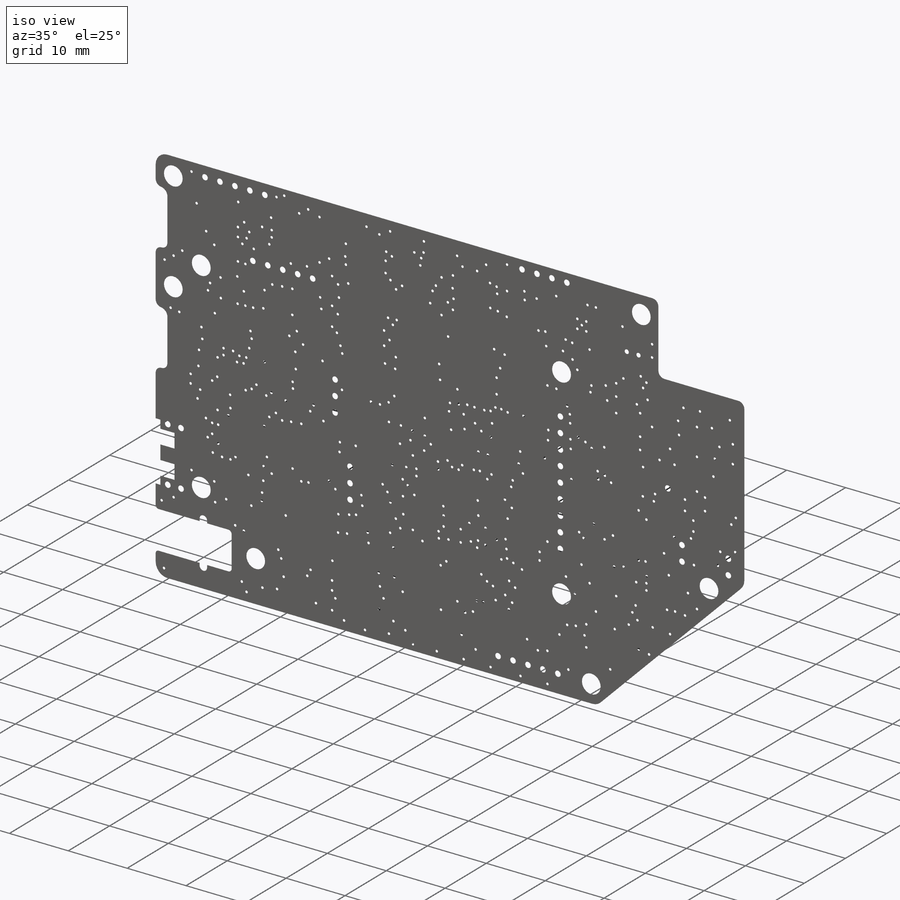
[diagram: iso view]
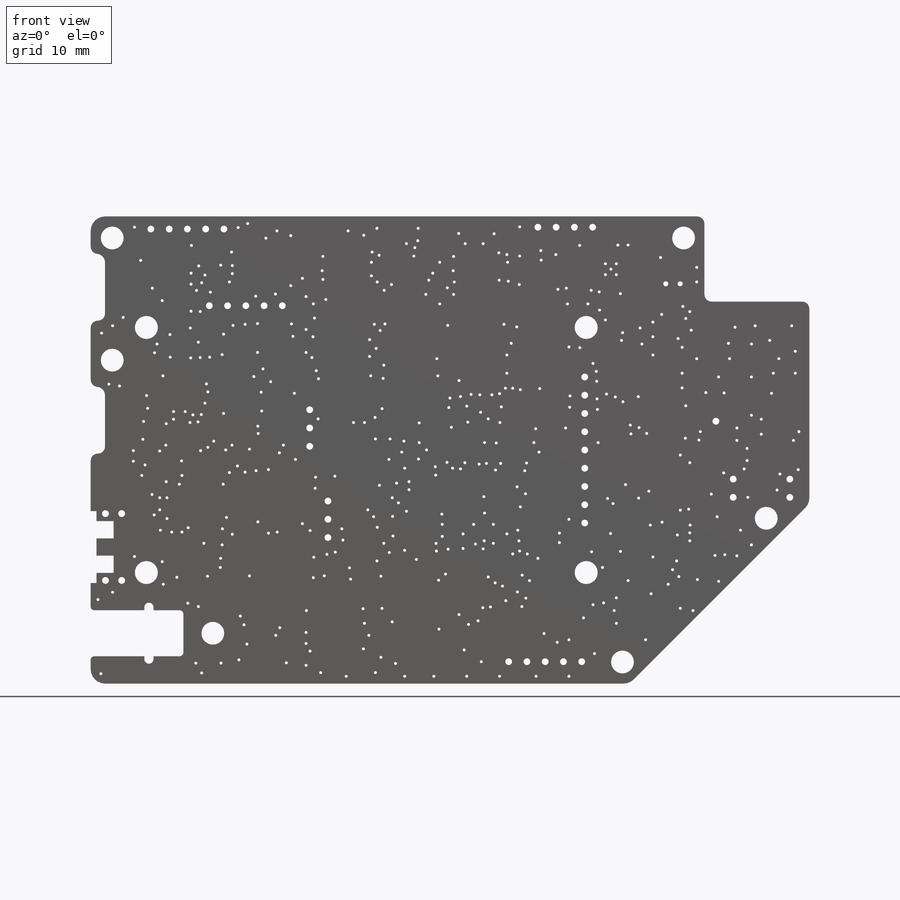
[diagram: front view]
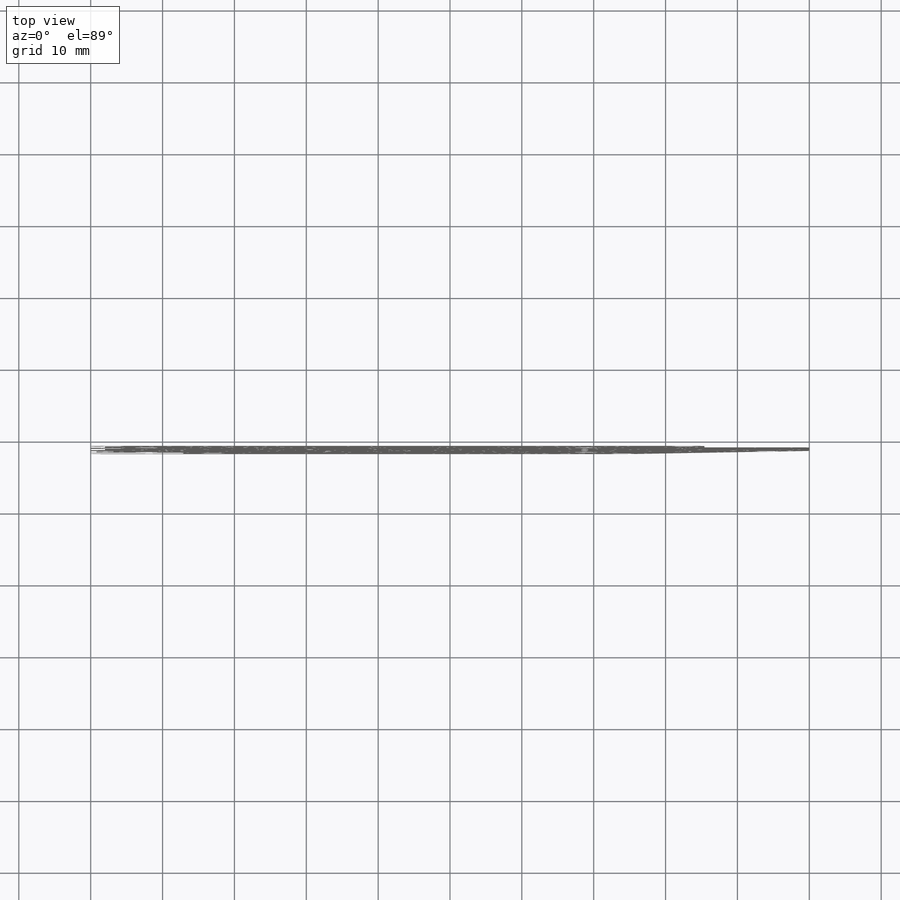
[diagram: top view]
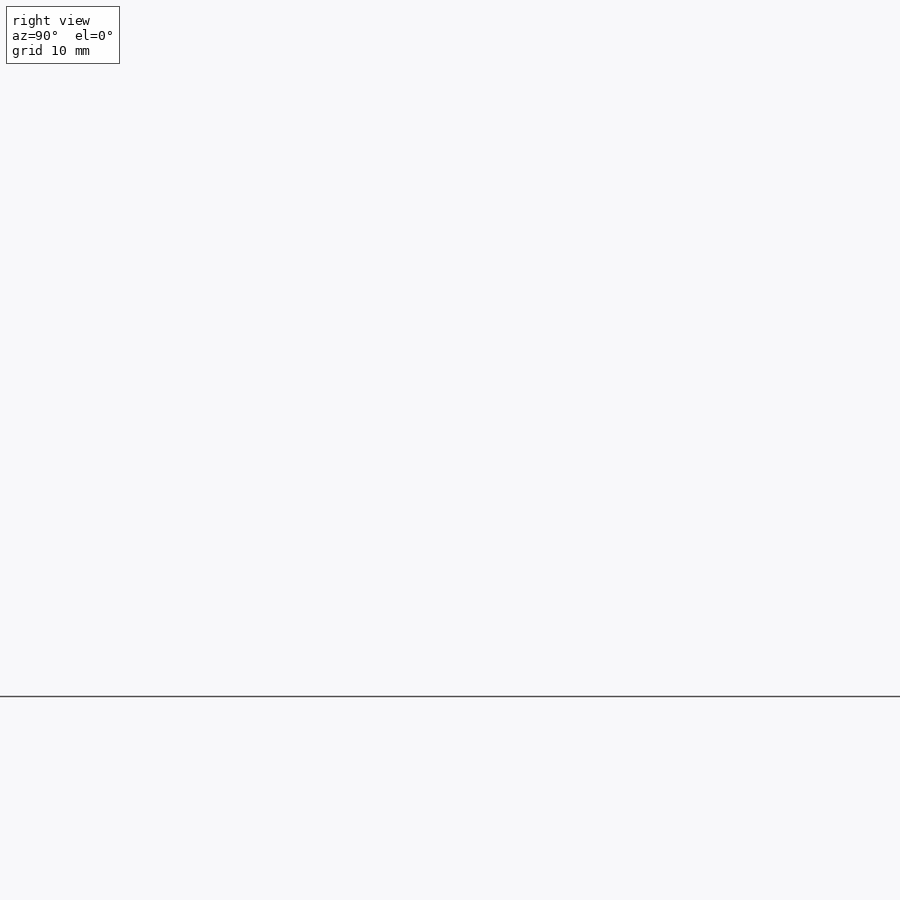
[diagram: right view]
SOLIDWORKS PART (.sldprt)
format: sldprt  version: not decoded by parser v0  size: 2,932,736 bytes
history: native  units: mm
features: sketch x338, extrude x336, cut_extrude x2, material x1, plane x1, fillet x1 (+12 scaffold rows collapsed; 1 parser-record rows omitted)
feature tree (692):
  scaffold x12  (default folders/planes/origin — collapsed)
  material  "Material <not specified>"
  sketch  "Sketch1"
  extrude  "BOARD"  Depth=1.68mm
  sketch  "Sketch2"
  cut_extrude  "PLATED HOLES"  [1 undecoded]
  plane  "Plane1"
  parser-record x1  (decoder bookkeeping rows leaked as tree rows — omitted from the tree; the rows remain in map.json)
  sketch  "Sketch6"
  extrude  "C0603-2"  Depth=0.65mm
  sketch  "Sketch7"
  extrude  "C0603-3"  Depth=0.65mm
  sketch  "Sketch8"
  extrude  "C0603-4"  Depth=0.65mm
  sketch  "Sketch9"
  extrude  "C0603-5"  Depth=0.65mm
  sketch  "Sketch10"
  extrude  "C0603-6"  Depth=0.65mm
  sketch  "Sketch11"
  extrude  "C0603-7"  Depth=0.65mm
  sketch  "Sketch12"
  extrude  "C0603-8"  Depth=0.65mm
  sketch  "Sketch13"
  extrude  "C0603-9"  Depth=0.65mm
  sketch  "Sketch14"
  extrude  "C0603-10"  Depth=0.65mm
  sketch  "Sketch15"
  extrude  "C0603-11"  Depth=0.65mm
  sketch  "Sketch16"
  extrude  "C0603-12"  Depth=0.65mm
  sketch  "Sketch17"
  extrude  "C0603-13"  Depth=0.65mm
  sketch  "Sketch18"
  extrude  "GENERIC_CAP_0805-1"  Depth=0.78mm
  sketch  "Sketch19"
  extrude  "GENERIC_CAP_0805-2"  Depth=0.78mm
  sketch  "Sketch21"
  extrude  "GENERIC_CAP_0805-4"  Depth=0.78mm
  sketch  "Sketch22"
  extrude  "C0603-14"  Depth=0.65mm
  sketch  "Sketch24"
  extrude  "C0603-16"  Depth=0.65mm
  sketch  "Sketch27"
  extrude  "C0603-19"  Depth=0.65mm
  sketch  "Sketch28"
  extrude  "C0603-20"  Depth=0.65mm
  sketch  "Sketch29"
  extrude  "C0603-21"  Depth=0.65mm
  sketch  "Sketch30"
  extrude  "C0603-22"  Depth=0.65mm
  sketch  "Sketch31"
  extrude  "C0603-23"  Depth=0.65mm
  sketch  "Sketch32"
  extrude  "C0603-24"  Depth=0.65mm
  sketch  "Sketch26"
  extrude  "C0603-18"  Depth=0.65mm
  sketch  "Sketch33"
  extrude  "C0603-25"  Depth=0.65mm
  sketch  "Sketch34"
  extrude  "C0603-26"  Depth=0.65mm
  sketch  "Sketch35"
  extrude  "C0603-27"  Depth=0.65mm
  sketch  "Sketch36"
  extrude  "C0603-28"  Depth=0.65mm
  sketch  "Sketch37"
  extrude  "C0603-29"  Depth=0.65mm
  sketch  "Sketch25"
  extrude  "C0603-17"  Depth=0.65mm
  sketch  "Sketch20"
  extrude  "GENERIC_CAP_0805-3"  Depth=0.78mm
  sketch  "Sketch23"
  extrude  "C0603-15"  Depth=0.65mm
  sketch  "Sketch39"
  extrude  "C0603-31"  Depth=0.65mm
  sketch  "Sketch38"
  extrude  "C0603-30"  Depth=0.65mm
  sketch  "Sketch5"
  extrude  "C0603-1"  Depth=0.65mm
  sketch  "Sketch40"
  extrude  "C0603-32"  Depth=0.65mm
  sketch  "Sketch41"
  extrude  "C0603-33"  Depth=0.65mm
  sketch  "Sketch42"
  extrude  "C0603-34"  Depth=0.65mm
  sketch  "Sketch43"
  extrude  "C0603-35"  Depth=0.65mm
  sketch  "Sketch44"
  extrude  "C0603-36"  Depth=0.65mm
  sketch  "Sketch45"
  extrude  "C0603-37"  Depth=0.65mm
  sketch  "Sketch46"
  extrude  "C0603-38"  Depth=0.65mm
  sketch  "Sketch47"
  extrude  "C0603-39"  Depth=0.65mm
  sketch  "Sketch48"
  extrude  "C0603-40"  Depth=0.65mm
  sketch  "Sketch49"
  extrude  "C0603-41"  Depth=0.65mm
  sketch  "Sketch50"
  extrude  "C0603-42"  Depth=0.65mm
  sketch  "Sketch51"
  extrude  "C0603-43"  Depth=0.65mm
  sketch  "Sketch52"
  extrude  "C0603-44"  Depth=0.65mm
  sketch  "Sketch53"
  extrude  "C0603-45"  Depth=0.65mm
  sketch  "Sketch54"
  extrude  "L0805-1"  Depth=1.25mm
  sketch  "Sketch55"
  extrude  "L0805-2"  Depth=1.25mm
  sketch  "Sketch56"
  extrude  "L0805-3"  Depth=1.25mm
  sketch  "Sketch57"
  extrude  "L0805-4"  Depth=1.25mm
  sketch  "Sketch58"
  extrude  "L0805-5"  Depth=1.25mm
  sketch  "Sketch59"
  extrude  "L0805-6"  Depth=1.25mm
  sketch  "Sketch60"
  extrude  "L0805-7"  Depth=1.25mm
  sketch  "Sketch61"
  extrude  "L0805-8"  Depth=1.25mm
  sketch  "Sketch62"
  extrude  "LED0603-1"  Depth=0.65mm
  sketch  "Sketch63"
  extrude  "R0603-1"  Depth=0.4mm
  sketch  "Sketch64"
  extrude  "R0603-2"  Depth=0.4mm
  sketch  "Sketch65"
  extrude  "R0603-3"  Depth=0.4mm
  sketch  "Sketch66"
  extrude  "R0603-4"  Depth=0.4mm
  sketch  "Sketch67"
  extrude  "R0603-5"  Depth=0.4mm
  sketch  "Sketch68"
  extrude  "R0603-6"  Depth=0.4mm
  sketch  "Sketch69"
  extrude  "R0603-7"  Depth=0.4mm
  sketch  "Sketch70"
  extrude  "R0603-8"  Depth=0.4mm
  sketch  "Sketch71"
  extrude  "R0603-9"  Depth=0.4mm
  sketch  "Sketch72"
  extrude  "R0603-10"  Depth=0.4mm
  sketch  "Sketch73"
  extrude  "R0603-11"  Depth=0.4mm
  sketch  "Sketch74"
  extrude  "R0603-12"  Depth=0.4mm
  sketch  "Sketch75"
  extrude  "R0603-13"  Depth=0.4mm
  sketch  "Sketch76"
  extrude  "R0603-14"  Depth=0.4mm
  sketch  "Sketch77"
  extrude  "75HMHZ_OSC-1"  Depth=0.65mm
  sketch  "Sketch78"
  extrude  "AD9834-1"  Depth=1.2mm
  sketch  "Sketch79"
  extrude  "AD9834-2"  Depth=1.2mm
  sketch  "Sketch80"
  extrude  "DS90LV028-1"  Depth=1.1999mm
  sketch  "Sketch81"
  extrude  "C0805-1"  Depth=1.35mm
  sketch  "Sketch82"
  extrude  "C0603-46"  Depth=0.65mm
  sketch  "Sketch83"
  extrude  "R0603-15"  Depth=0.4mm
  sketch  "Sketch85"
  extrude  "T4-1-KK81-1"  Depth=0.65mm
  sketch  "Sketch86"
  extrude  "C0603-47"  Depth=0.65mm
  sketch  "Sketch87"
  extrude  "C0603-48"  Depth=0.65mm
  sketch  "Sketch91"
  extrude  "C0603-49"  Depth=0.65mm
  sketch  "Sketch92"
  extrude  "C0603-50"  Depth=0.65mm
  sketch  "Sketch93"
  extrude  "R0603-16"  Depth=0.4mm
  sketch  "Sketch94"
  extrude  "C0603-51"  Depth=0.65mm
  sketch  "Sketch95"
  extrude  "C0603-52"  Depth=0.65mm
  sketch  "Sketch96"
  extrude  "C0603-53"  Depth=0.65mm
  sketch  "Sketch97"
  extrude  "C0603-54"  Depth=0.65mm
  sketch  "Sketch98"
  extrude  "C0603-55"  Depth=0.65mm
  sketch  "Sketch99"
  extrude  "C0603-56"  Depth=0.65mm
  sketch  "Sketch100"
  extrude  "C0603-57"  Depth=0.65mm
  sketch  "Sketch101"
  extrude  "C0603-58"  Depth=0.65mm
  sketch  "Sketch102"
  extrude  "C0603-59"  Depth=0.65mm
  sketch  "Sketch103"
  extrude  "C0603-60"  Depth=0.65mm
  sketch  "Sketch104"
  extrude  "C0603-61"  Depth=0.65mm
  sketch  "Sketch105"
  extrude  "C0603-62"  Depth=0.65mm
  sketch  "Sketch106"
  extrude  "C0603-63"  Depth=0.65mm
  sketch  "Sketch107"
  extrude  "C0603-64"  Depth=0.65mm
  sketch  "Sketch108"
  extrude  "C0603-65"  Depth=0.65mm
  sketch  "Sketch109"
  extrude  "C0603-66"  Depth=0.65mm
  sketch  "Sketch110"
  extrude  "C0603-67"  Depth=0.65mm
  sketch  "Sketch111"
  extrude  "C0603-68"  Depth=0.65mm
  sketch  "Sketch112"
  extrude  "C0603-69"  Depth=0.65mm
  sketch  "Sketch113"
  extrude  "L0805-9"  Depth=1.25mm
  sketch  "Sketch114"
  extrude  "L0805-10"  Depth=1.25mm
  sketch  "Sketch115"
  extrude  "L0805-11"  Depth=1.25mm
  sketch  "Sketch116"
  extrude  "L0805-12"  Depth=1.25mm
  sketch  "Sketch117"
  extrude  "R0603-17"  Depth=0.4mm
  sketch  "Sketch118"
  extrude  "R0603-18"  Depth=0.4mm
  sketch  "Sketch119"
  extrude  "AD8131-1"  Depth=1.1mm
  sketch  "Sketch120"
  extrude  "AD8131-2"  Depth=1.1mm
  sketch  "Sketch121"
  extrude  "74CBTLV3253-1"  Depth=1.73mm
  sketch  "Sketch122"
  extrude  "74CBTLV3253-2"  Depth=1.73mm
  sketch  "Sketch123"
  extrude  "MCP6N11-1"  Depth=0.65mm
  sketch  "Sketch124"
  extrude  "MCP6N11-2"  Depth=0.65mm
  sketch  "Sketch125"
  extrude  "R0603-19"  Depth=0.4mm
  sketch  "Sketch126"
  extrude  "R0603-20"  Depth=0.4mm
  sketch  "Sketch127"
  extrude  "R0603-21"  Depth=0.4mm
  sketch  "Sketch128"
  extrude  "R0603-22"  Depth=0.4mm
  sketch  "Sketch131"
  extrude  "C0603-70"  Depth=0.65mm
  sketch  "Sketch132"
  extrude  "C0603-71"  Depth=0.65mm
  sketch  "Sketch133"
  extrude  "C0603-72"  Depth=0.65mm
  sketch  "Sketch134"
  extrude  "C0603-73"  Depth=0.65mm
  sketch  "Sketch135"
  extrude  "C0603-74"  Depth=0.65mm
  sketch  "Sketch136"
  extrude  "C0603-75"  Depth=0.65mm
  sketch  "Sketch137"
  extrude  "C0603-76"  Depth=0.65mm
  sketch  "Sketch138"
  extrude  "C0603-77"  Depth=0.65mm
  sketch  "Sketch139"
  extrude  "R0603-23"  Depth=0.4mm
  sketch  "Sketch140"
  extrude  "R0603-24"  Depth=0.4mm
  sketch  "Sketch141"
  extrude  "R0603-25"  Depth=0.4mm
  sketch  "Sketch142"
  extrude  "R0603-26"  Depth=0.4mm
  sketch  "Sketch144"
  extrude  "SOT-23-1"  Depth=1.1mm
  sketch  "Sketch145"
  extrude  "ENCODER_PEC09-2320F-S0015-1"  Depth=0.65mm
  sketch  "Sketch147"
  extrude  "R1206-1"  Depth=0.65mm
  sketch  "Sketch148"
  extrude  "CRYSTAL_24MHZ_P79E-1"  Depth=0.65mm
  sketch  "Sketch149"
  extrude  "C0603-78"  Depth=0.65mm
  sketch  "Sketch150"
  extrude  "C0603-79"  Depth=0.65mm
  sketch  "Sketch151"
  extrude  "2U2H_INDUCTOR_NR6028T2R2N-1"  Depth=0.65mm
  sketch  "Sketch152"
  extrude  "BUCK_REGULATOR_AP3417C-1"  Depth=0.65mm
  sketch  "Sketch153"
  extrude  "DPDT_ANALOG_MAX4525-1"  Depth=0.95mm
  sketch  "Sketch154"
  extrude  "R0603-27"  Depth=0.4mm
  sketch  "Sketch155"
  extrude  "R0603-28"  Depth=0.4mm
  sketch  "Sketch156"
  extrude  "R1206-2"  Depth=0.65mm
  sketch  "Sketch157"
  extrude  "SOT-23-5-1"  Depth=0.65mm
  sketch  "Sketch170"
  extrude  "AD8302-1"  Depth=1.2mm
  sketch  "Sketch171"
  extrude  "MICROPHONE_MEMS_SPU0410HR5H-PB-1"  Depth=0.65mm
  sketch  "Sketch172"
  extrude  "AUDIO_AMP_TPA0253DGQR-1"  Depth=0.65mm
  sketch  "Sketch173"
  extrude  "BAT-MANAGE_MCP73871-1"  Depth=1mm
  sketch  "Sketch174"
  extrude  "CAP_SENSE_AT42QT1010-1"  Depth=1.45mm
  sketch  "Sketch175"
  extrude  "CAP_SENSE_AT42QT1010-2"  Depth=1.45mm
  sketch  "Sketch176"
  extrude  "CRYSTAL_SMT_32_768-1"  Depth=0.65mm
  sketch  "Sketch177"
  extrude  "C0603-80"  Depth=0.65mm
  sketch  "Sketch178"
  extrude  "C0603-81"  Depth=0.65mm
  sketch  "Sketch179"
  extrude  "C0603-82"  Depth=0.65mm
  sketch  "Sketch180"
  extrude  "C0603-83"  Depth=0.65mm
  sketch  "Sketch181"
  extrude  "C0603-84"  Depth=0.65mm
  sketch  "Sketch182"
  extrude  "C0603-85"  Depth=0.65mm
  sketch  "Sketch183"
  extrude  "C0603-86"  Depth=0.65mm
  sketch  "Sketch184"
  extrude  "C0603-87"  Depth=0.65mm
  sketch  "Sketch185"
  extrude  "C0603-88"  Depth=0.65mm
  sketch  "Sketch186"
  extrude  "C0603-89"  Depth=0.65mm
  sketch  "Sketch187"
  extrude  "C0603-90"  Depth=0.65mm
  sketch  "Sketch188"
  extrude  "C0603-91"  Depth=0.65mm
  sketch  "Sketch189"
  extrude  "C0603-92"  Depth=0.65mm
  sketch  "Sketch190"
  extrude  "C0603-93"  Depth=0.65mm
  sketch  "Sketch191"
  extrude  "C0603-94"  Depth=0.65mm
  sketch  "Sketch192"
  extrude  "C0603-95"  Depth=0.65mm
  sketch  "Sketch193"
  extrude  "C0603-96"  Depth=0.65mm
  sketch  "Sketch194"
  extrude  "C0603-97"  Depth=0.65mm
  sketch  "Sketch195"
  extrude  "C0603-98"  Depth=0.65mm
  sketch  "Sketch196"
  extrude  "C0603-99"  Depth=0.65mm
  sketch  "Sketch197"
  extrude  "C0603-100"  Depth=0.65mm
  sketch  "Sketch198"
  extrude  "GENERIC_CAP_0805-5"  Depth=0.78mm
  sketch  "Sketch199"
  extrude  "GENERIC_CAP_0805-6"  Depth=0.78mm
  sketch  "Sketch200"
  extrude  "GENERIC_CAP_0805-7"  Depth=0.78mm
  sketch  "Sketch201"
  extrude  "GENERIC_CAP_0805-8"  Depth=0.78mm
  sketch  "Sketch202"
  extrude  "GENERIC_CAP_0805-9"  Depth=0.78mm
  sketch  "Sketch203"
  extrude  "GENERIC_CAP_0805-10"  Depth=0.78mm
  sketch  "Sketch204"
  extrude  "C0603-101"  Depth=0.65mm
  sketch  "Sketch205"
  extrude  "C0603-102"  Depth=0.65mm
  sketch  "Sketch206"
  extrude  "C1210-1"  Depth=1.7mm
  sketch  "Sketch207"
  extrude  "C1210-2"  Depth=1.7mm
  sketch  "Sketch208"
  extrude  "C0603-103"  Depth=0.65mm
  sketch  "Sketch209"
  extrude  "C0805-2"  Depth=1.35mm
  sketch  "Sketch210"
  extrude  "C0805-3"  Depth=1.35mm
  sketch  "Sketch211"
  extrude  "C0603-104"  Depth=0.65mm
  sketch  "Sketch212"
  extrude  "C0603-105"  Depth=0.65mm
  sketch  "Sketch213"
  extrude  "C0603-106"  Depth=0.65mm
  sketch  "Sketch214"
  extrude  "C0603-107"  Depth=0.65mm
  sketch  "Sketch215"
  extrude  "C0603-108"  Depth=0.65mm
  sketch  "Sketch216"
  extrude  "C0603-109"  Depth=0.65mm
  sketch  "Sketch217"
  extrude  "C0603-110"  Depth=0.65mm
  sketch  "Sketch218"
  extrude  "C0603-111"  Depth=0.65mm
  sketch  "Sketch219"
  extrude  "C0603-112"  Depth=0.65mm
  sketch  "Sketch220"
  extrude  "C0603-113"  Depth=0.65mm
  sketch  "Sketch221"
  extrude  "C0603-114"  Depth=0.65mm
  sketch  "Sketch222"
  extrude  "C0603-115"  Depth=0.65mm
  sketch  "Sketch223"
  extrude  "C0603-116"  Depth=0.65mm
  sketch  "Sketch224"
  extrude  "C0603-117"  Depth=0.65mm
  sketch  "Sketch225"
  extrude  "C0603-118"  Depth=0.65mm
  sketch  "Sketch226"
  extrude  "C0603-119"  Depth=0.65mm
  sketch  "Sketch227"
  extrude  "C0603-120"  Depth=0.65mm
  sketch  "Sketch228"
  extrude  "C0603-121"  Depth=0.65mm
  sketch  "Sketch229"
  extrude  "C0603-122"  Depth=0.65mm
  sketch  "Sketch230"
  extrude  "C0603-123"  Depth=0.65mm
  sketch  "Sketch231"
  extrude  "C0603-124"  Depth=0.65mm
  sketch  "Sketch232"
  extrude  "C0603-125"  Depth=0.65mm
  sketch  "Sketch233"
  extrude  "C0603-126"  Depth=0.65mm
  sketch  "Sketch234"
  extrude  "C0603-127"  Depth=0.65mm
  sketch  "Sketch235"
  extrude  "C0603-128"  Depth=0.65mm
  sketch  "Sketch236"
  extrude  "C0603-129"  Depth=0.65mm
  sketch  "Sketch237"
  extrude  "C0603-130"  Depth=0.65mm
  sketch  "Sketch238"
  extrude  "C0603-131"  Depth=0.65mm
  sketch  "Sketch239"
  extrude  "C0603-132"  Depth=0.65mm
  sketch  "Sketch240"
  extrude  "C0603-133"  Depth=0.65mm
  sketch  "Sketch241"
  extrude  "C0603-134"  Depth=0.65mm
  sketch  "Sketch242"
  extrude  "C0603-135"  Depth=0.65mm
  sketch  "Sketch243"
  extrude  "C0603-136"  Depth=0.65mm
  sketch  "Sketch244"
  extrude  "C0603-137"  Depth=0.65mm
  sketch  "Sketch245"
  extrude  "C0603-138"  Depth=0.65mm
  sketch  "Sketch246"
  extrude  "C0603-139"  Depth=0.65mm
  sketch  "Sketch247"
  extrude  "C0603-140"  Depth=0.65mm
  sketch  "Sketch248"
  extrude  "C0603-141"  Depth=0.65mm
  sketch  "Sketch249"
  extrude  "C0603-142"  Depth=0.65mm
  sketch  "Sketch250"
  extrude  "C0603-143"  Depth=0.65mm
  sketch  "Sketch251"
  extrude  "C0603-144"  Depth=0.65mm
  sketch  "Sketch252"
  extrude  "C0603-145"  Depth=0.65mm
  sketch  "Sketch253"
  extrude  "C0603-146"  Depth=0.65mm
  sketch  "Sketch254"
  extrude  "C0603-147"  Depth=0.65mm
  sketch  "Sketch255"
  extrude  "C0603-148"  Depth=0.65mm
  sketch  "Sketch256"
  extrude  "C0603-149"  Depth=0.65mm
  sketch  "Sketch257"
  extrude  "C0603-150"  Depth=0.65mm
  sketch  "Sketch258"
  extrude  "C0603-151"  Depth=0.65mm
  sketch  "Sketch259"
  extrude  "C0603-152"  Depth=0.65mm
  sketch  "Sketch260"
  extrude  "C0603-153"  Depth=0.65mm
  sketch  "Sketch261"
  extrude  "DIGITAL_POT_MAX5388-1"  Depth=0.95mm
  sketch  "Sketch262"
  extrude  "GP-1513-1"  Depth=0.65mm
  sketch  "Sketch263"
  extrude  "GPS_CERAMIC_ANT_25X25X2-1"  Depth=0.65mm
  sketch  "Sketch264"
  extrude  "JST_2P-2MM-1"  Depth=0.65mm
  sketch  "Sketch265"
  extrude  "MIC_PREAMP_SSM2167-1"  Depth=1.45mm
  sketch  "Sketch266"
  extrude  "SOT-23-2"  Depth=1.1mm
  sketch  "Sketch267"
  extrude  "SOT-23-3"  Depth=1.1mm
  sketch  "Sketch268"
  extrude  "SOT-23-4"  Depth=1.1mm
  sketch  "Sketch269"
  extrude  "OP_AMP_FAN4174-1"  Depth=0.65mm
  sketch  "Sketch270"
  extrude  "OP_AMP_FAN4174-2"  Depth=0.65mm
  sketch  "Sketch271"
  extrude  "OP_AMP_FAN4174-3"  Depth=0.65mm
  sketch  "Sketch272"
  extrude  "OP_AMP_FAN4174-4"  Depth=0.65mm
  sketch  "Sketch273"
  extrude  "OP_AMP_FAN4174-5"  Depth=0.65mm
  sketch  "Sketch274"
  extrude  "RF_DPDT_MASWSS0129TR-1"  Depth=0.9mm
  sketch  "Sketch275"
  extrude  "RF_DPDT_MASWSS0129TR-2"  Depth=0.9mm
  sketch  "Sketch276"
  extrude  "RF_DPDT_MASWSS0129TR-3"  Depth=0.9mm
  sketch  "Sketch277"
  extrude  "RF_DPDT_MASWSS0129TR-4"  Depth=0.9mm
  sketch  "Sketch278"
  extrude  "R0603-29"  Depth=0.4mm
  sketch  "Sketch279"
  extrude  "R0603-30"  Depth=0.4mm
  sketch  "Sketch280"
  extrude  "R0603-31"  Depth=0.4mm
  sketch  "Sketch281"
  extrude  "R0603-32"  Depth=0.4mm
  sketch  "Sketch282"
  extrude  "R0603-33"  Depth=0.4mm
  sketch  "Sketch283"
  extrude  "R0603-34"  Depth=0.4mm
  sketch  "Sketch284"
  extrude  "R0603-35"  Depth=0.4mm
  sketch  "Sketch285"
  extrude  "R0603-36"  Depth=0.4mm
  sketch  "Sketch286"
  extrude  "R0603-37"  Depth=0.4mm
  sketch  "Sketch287"
  extrude  "R0603-38"  Depth=0.4mm
  sketch  "Sketch288"
  extrude  "R0603-39"  Depth=0.4mm
  sketch  "Sketch289"
  extrude  "R0603-40"  Depth=0.4mm
  sketch  "Sketch290"
  extrude  "R0603-41"  Depth=0.4mm
  sketch  "Sketch291"
  extrude  "R0603-42"  Depth=0.4mm
  sketch  "Sketch292"
  extrude  "R0603-43"  Depth=0.4mm
  sketch  "Sketch293"
  extrude  "R0603-44"  Depth=0.4mm
  sketch  "Sketch294"
  extrude  "R0603-45"  Depth=0.4mm
  sketch  "Sketch295"
  extrude  "R0603-46"  Depth=0.4mm
  sketch  "Sketch296"
  extrude  "R0603-47"  Depth=0.4mm
  sketch  "Sketch297"
  extrude  "R0603-48"  Depth=0.4mm
  sketch  "Sketch298"
  extrude  "R0603-49"  Depth=0.4mm
  sketch  "Sketch299"
  extrude  "R0603-50"  Depth=0.4mm
  sketch  "Sketch300"
  extrude  "R0603-51"  Depth=0.4mm
  sketch  "Sketch301"
  extrude  "R0603-52"  Depth=0.4mm
  sketch  "Sketch302"
  extrude  "R0603-53"  Depth=0.4mm
  sketch  "Sketch303"
  extrude  "R0603-54"  Depth=0.4mm
  sketch  "Sketch304"
  extrude  "R0603-55"  Depth=0.4mm
  sketch  "Sketch305"
  extrude  "R0603-56"  Depth=0.4mm
  sketch  "Sketch306"
  extrude  "R0603-57"  Depth=0.4mm
  sketch  "Sketch307"
  extrude  "R0603-58"  Depth=0.4mm
  sketch  "Sketch308"
  extrude  "R0603-59"  Depth=0.4mm
  sketch  "Sketch309"
  extrude  "R0603-60"  Depth=0.4mm
  sketch  "Sketch310"
  extrude  "R0603-61"  Depth=0.4mm
  sketch  "Sketch311"
  extrude  "R0603-62"  Depth=0.4mm
  sketch  "Sketch312"
  extrude  "R0603-63"  Depth=0.4mm
  sketch  "Sketch313"
  extrude  "R0603-64"  Depth=0.4mm
  sketch  "Sketch314"
  extrude  "R0603-65"  Depth=0.4mm
  sketch  "Sketch315"
  extrude  "R0603-66"  Depth=0.4mm
  sketch  "Sketch316"
  extrude  "R0603-67"  Depth=0.4mm
  sketch  "Sketch317"
  extrude  "R0603-68"  Depth=0.4mm
  sketch  "Sketch318"
  extrude  "R0603-69"  Depth=0.4mm
  sketch  "Sketch319"
  extrude  "R0603-70"  Depth=0.4mm
  sketch  "Sketch320"
  extrude  "R0603-71"  Depth=0.4mm
  sketch  "Sketch321"
  extrude  "R0603-72"  Depth=0.4mm
  sketch  "Sketch322"
  extrude  "R0603-73"  Depth=0.4mm
  sketch  "Sketch323"
  extrude  "R1206-3"  Depth=0.65mm
  sketch  "Sketch326"
  extrude  "SPDT_ANALOG_SWITCH_SN74LVC1G3157-1"  Depth=0.65mm
  sketch  "Sketch327"
  extrude  "SPEAKER_SMT_WATERPROOF_2403-260-00107-1"  Depth=0.65mm
  sketch  "Sketch328"
  extrude  "STM32F429_LQFP100-1"  Depth=1.6mm
  sketch  "Sketch332"
  extrude  "GENERIC_CAP_0805-11"  Depth=0.78mm
  sketch  "Sketch333"
  extrude  "GENERIC_CAP_0805-12"  Depth=0.78mm
  sketch  "Sketch334"
  extrude  "GENERIC_CAP_0805-13"  Depth=0.78mm
  sketch  "Sketch335"
  extrude  "GENERIC_CAP_0805-14"  Depth=0.78mm
  sketch  "Sketch336"
  extrude  "GENERIC_CAP_0805-15"  Depth=0.78mm
  sketch  "Sketch339"
  extrude  "R0603-74"  Depth=0.4mm
  sketch  "Sketch340"
  extrude  "R0603-75"  Depth=0.4mm
  sketch  "Sketch341"
  extrude  "R0603-76"  Depth=0.4mm
  sketch  "Sketch342"
  extrude  "R0603-77"  Depth=0.4mm
  sketch  "Sketch343"
  extrude  "R0603-78"  Depth=0.4mm
  sketch  "Sketch344"
  extrude  "R0603-79"  Depth=0.4mm
  sketch  "Sketch345"
  extrude  "R0603-80"  Depth=0.4mm
  sketch  "Sketch346"
  extrude  "R0603-81"  Depth=0.4mm
  sketch  "Sketch347"
  extrude  "R0603-82"  Depth=0.4mm
  sketch  "Sketch348"
  extrude  "R0603-83"  Depth=0.4mm
  sketch  "Sketch349"
  extrude  "R0603-84"  Depth=0.4mm
  sketch  "Sketch350"
  extrude  "R0603-85"  Depth=0.4mm
  sketch  "Sketch351"
  extrude  "R0603-86"  Depth=0.4mm
  sketch  "Sketch352"
  extrude  "PAD_1MM-1"  Depth=0.65mm
  sketch  "Sketch353"
  extrude  "PAD_1MM-2"  Depth=0.65mm
  sketch  "Sketch354"
  extrude  "PAD_1MM-3"  Depth=0.65mm
  sketch  "Sketch355"
  extrude  "PAD_1MM-4"  Depth=0.65mm
  sketch  "Sketch356"
  extrude  "L0805-13"  Depth=1.25mm
  sketch  "Sketch357"
  extrude  "R0603-87"  Depth=0.4mm
  sketch  "Sketch358"
  extrude  "R0603-88"  Depth=0.4mm
  sketch  "Sketch359"
  extrude  "R0603-89"  Depth=0.4mm
  sketch  "Sketch360"
  extrude  "R0603-90"  Depth=0.4mm
  sketch  "Sketch361"
  extrude  "R0603-91"  Depth=0.4mm
  sketch  "Sketch362"
  extrude  "R0603-92"  Depth=0.4mm
  sketch  "Sketch365"
  extrude  "C0603-154"  Depth=0.65mm
  sketch  "Sketch366"
  extrude  "R0603-93"  Depth=0.4mm
  sketch  "Sketch367"
  extrude  "R0603-94"  Depth=0.4mm
  sketch  "Sketch368"
  extrude  "MICROSD_DM3CS-SF-1"  Depth=0.65mm
  sketch  "Sketch380"  dims[c1.D1=0.5mm c1.D2=0.5mm c2.D1=0.5mm]
  cut_extrude  "Cut-Extrude2"  Depth=10mm
  fillet  "Fillet1"  Radius=1mm
decode coverage: 339 of 677 modeling features carry decoded parameters
note: 1 parameter value undecoded
note: suppression state not decoded; provenance and decode notes live in map.json
